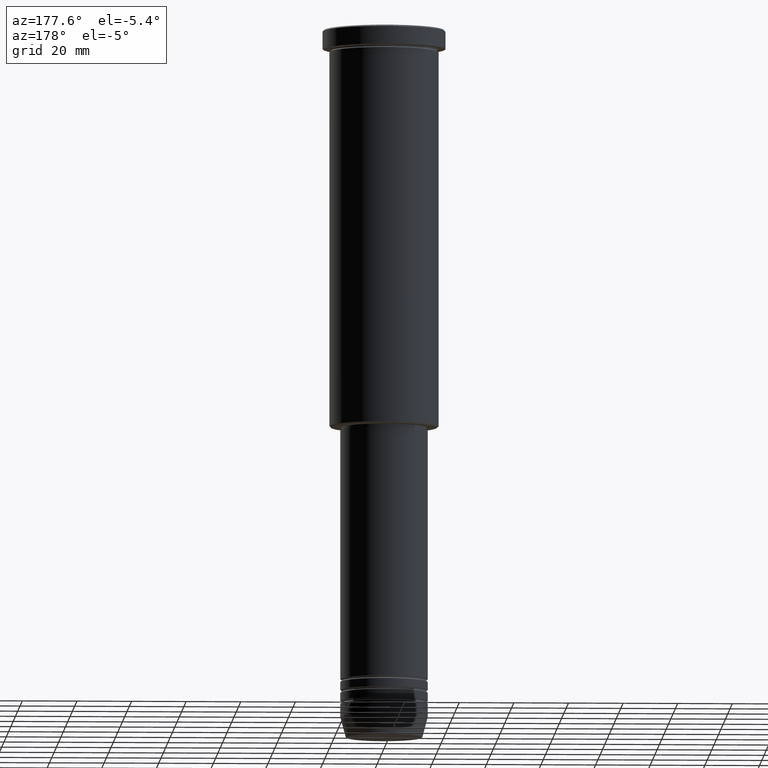
[diagram: clean part render]
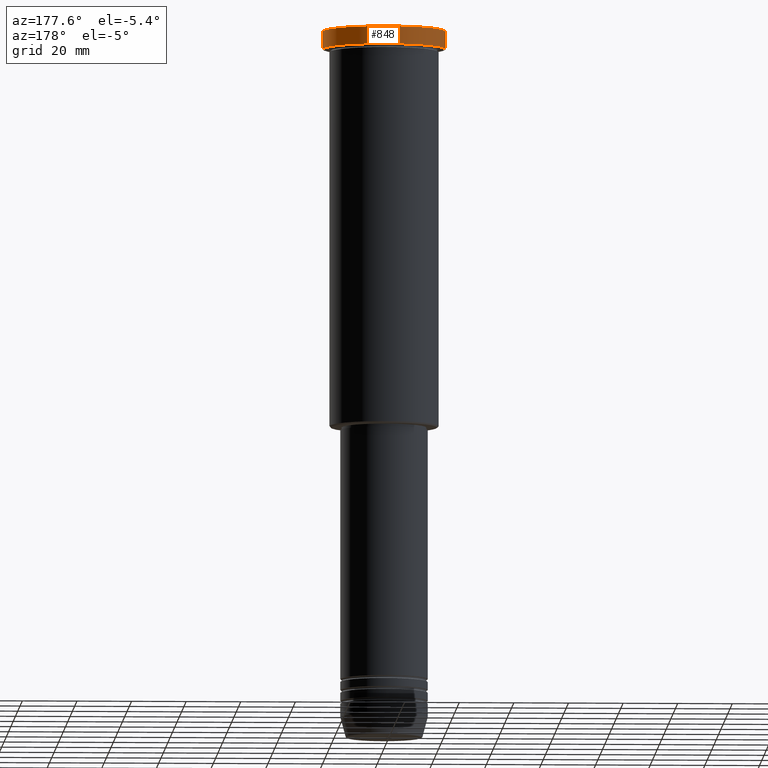
[diagram: same view with one face highlighted and labeled with its STEP entity id]
A machine part, auxiliary view. The second image highlights one B-rep face of the part: STEP entity #848.
In plain terms, the highlighted cylindrical surface (partial cylindrical patch) has radius 22.5 mm, axis along (-0, -0, 1).
Its self-contained STEP definition (entity closure, byte-faithful):
#9 = DIRECTION ( 'NONE',  ( -0.000000000000000000, -0.000000000000000000, 1.000000000000000000 ) ) ;
#10 = CARTESIAN_POINT ( 'NONE',  ( 0.000000000000000000, 0.000000000000000000, -0.5000000000001045830 ) ) ;
#51 = CARTESIAN_POINT ( 'NONE',  ( 0.000000000000000000, 0.000000000000000000, -6.999999999999995559 ) ) ;
#74 = DIRECTION ( 'NONE',  ( -0.000000000000000000, -0.000000000000000000, 1.000000000000000000 ) ) ;
#102 = VERTEX_POINT ( 'NONE', #944 ) ;
#133 = CIRCLE ( 'NONE', #905, 22.50000000000000000 ) ;
#157 = VERTEX_POINT ( 'NONE', #217 ) ;
#175 = DIRECTION ( 'NONE',  ( 0.000000000000000000, 0.000000000000000000, -1.000000000000000000 ) ) ;
#217 = CARTESIAN_POINT ( 'NONE',  ( 22.50000000000000000, 0.000000000000000000, -0.5000000000001045830 ) ) ;
#219 = ORIENTED_EDGE ( 'NONE', *, *, #898, .T. ) ;
#223 = EDGE_CURVE ( 'NONE', #785, #157, #749, .T. ) ;
#288 = DIRECTION ( 'NONE',  ( 1.000000000000000000, 0.000000000000000000, 0.000000000000000000 ) ) ;
#341 = DIRECTION ( 'NONE',  ( -0.000000000000000000, -0.000000000000000000, 1.000000000000000000 ) ) ;
#369 = FACE_OUTER_BOUND ( 'NONE', #689, .T. ) ;
#373 = DIRECTION ( 'NONE',  ( -0.000000000000000000, -0.000000000000000000, 1.000000000000000000 ) ) ;
#374 = DIRECTION ( 'NONE',  ( 1.000000000000000000, 0.000000000000000000, 0.000000000000000000 ) ) ;
#414 = CIRCLE ( 'NONE', #1078, 22.50000000000000000 ) ;
#434 = AXIS2_PLACEMENT_3D ( 'NONE', #894, #373, #288 ) ;
#449 = VECTOR ( 'NONE', #341, 1000.000000000000000 ) ;
#463 = EDGE_CURVE ( 'NONE', #102, #157, #133, .T. ) ;
#523 = CARTESIAN_POINT ( 'NONE',  ( 22.50000000000000000, 0.000000000000000000, -6.999999999999995559 ) ) ;
#580 = ORIENTED_EDGE ( 'NONE', *, *, #725, .T. ) ;
#603 = VERTEX_POINT ( 'NONE', #843 ) ;
#689 = EDGE_LOOP ( 'NONE', ( #580, #219, #884, #1071 ) ) ;
#725 = EDGE_CURVE ( 'NONE', #785, #603, #414, .T. ) ;
#728 = CYLINDRICAL_SURFACE ( 'NONE', #434, 22.50000000000000000 ) ;
#749 = LINE ( 'NONE', #1117, #449 ) ;
#785 = VERTEX_POINT ( 'NONE', #523 ) ;
#843 = CARTESIAN_POINT ( 'NONE',  ( -22.50000000000000000, 2.755455298081544778E-15, -6.999999999999995559 ) ) ;
#848 = ADVANCED_FACE ( 'NONE', ( #369 ), #728, .T. ) ;
#884 = ORIENTED_EDGE ( 'NONE', *, *, #463, .T. ) ;
#894 = CARTESIAN_POINT ( 'NONE',  ( 0.000000000000000000, 0.000000000000000000, 0.000000000000000000 ) ) ;
#898 = EDGE_CURVE ( 'NONE', #603, #102, #1169, .T. ) ;
#905 = AXIS2_PLACEMENT_3D ( 'NONE', #10, #175, #374 ) ;
#944 = CARTESIAN_POINT ( 'NONE',  ( -22.50000000000000000, 2.755455298081544778E-15, -0.5000000000001045830 ) ) ;
#1052 = DIRECTION ( 'NONE',  ( 1.000000000000000000, 0.000000000000000000, 0.000000000000000000 ) ) ;
#1071 = ORIENTED_EDGE ( 'NONE', *, *, #223, .F. ) ;
#1078 = AXIS2_PLACEMENT_3D ( 'NONE', #51, #74, #1052 ) ;
#1079 = VECTOR ( 'NONE', #9, 1000.000000000000000 ) ;
#1117 = CARTESIAN_POINT ( 'NONE',  ( 22.50000000000000000, 0.000000000000000000, 0.000000000000000000 ) ) ;
#1169 = LINE ( 'NONE', #1173, #1079 ) ;
#1173 = CARTESIAN_POINT ( 'NONE',  ( -22.50000000000000000, 2.755455298081544778E-15, 0.000000000000000000 ) ) ;